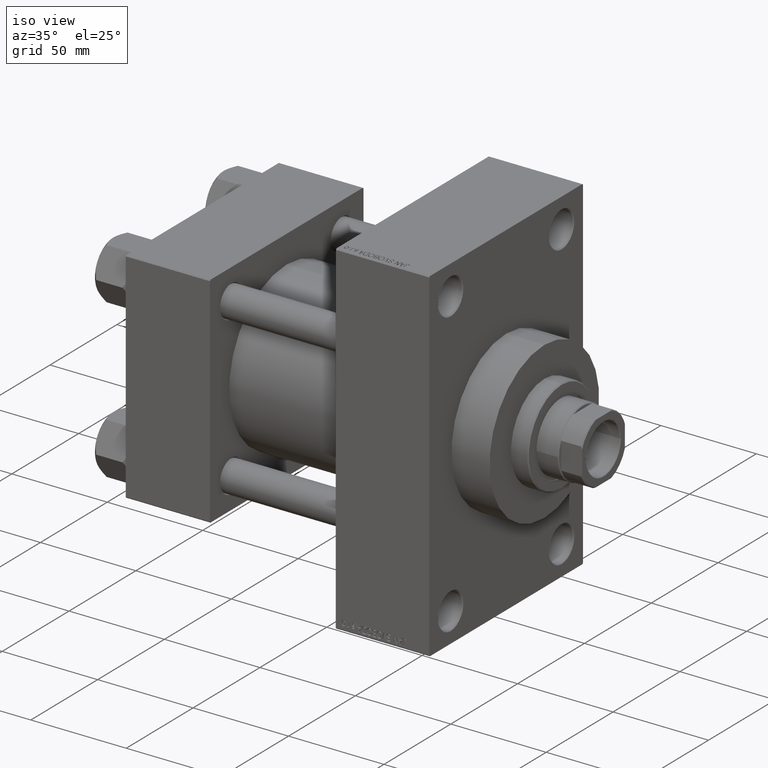
[diagram: clean part render]
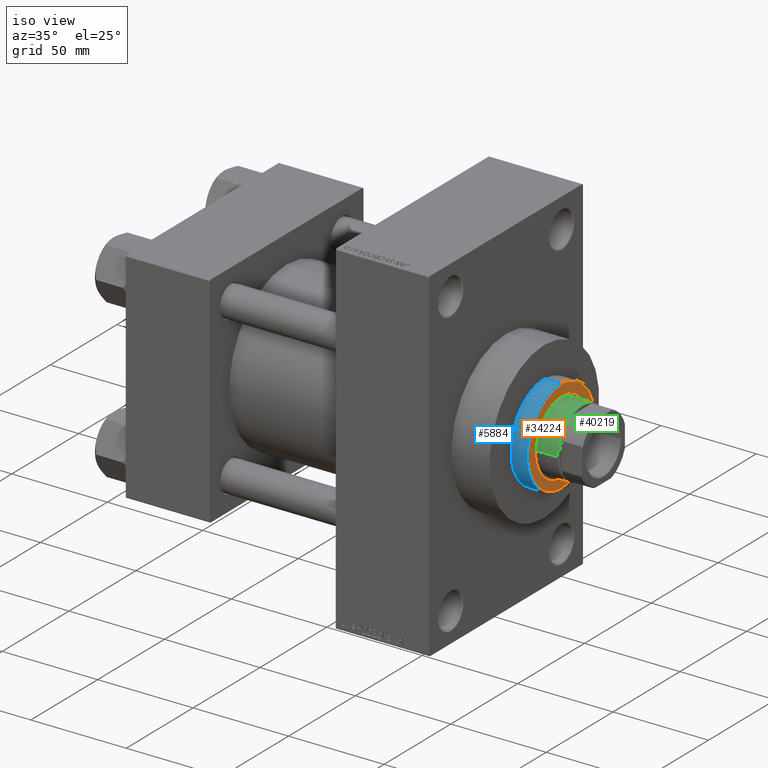
[diagram: same view with three faces highlighted in distinct colors, each labeled with its STEP entity id]
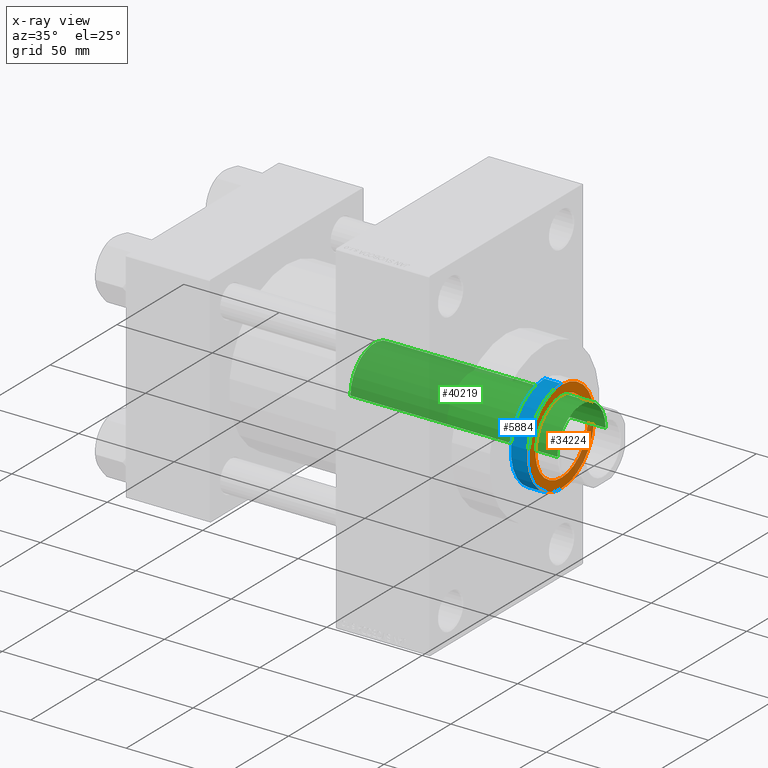
[diagram: x-ray of the same camera — body ghosted, the three highlighted faces saturated]
A machine part, iso view with three faces highlighted in distinct colors.
The next image is the same camera in x-ray (body ghosted, the three faces saturated) — at least one of them is partly hidden behind the body in this view.
Their STEP definitions:

[orange] entity #34224 — the highlighted planar face has unit normal (1, -0, -0).
#1458 = DIRECTION ( 'NONE',  ( 1.000000000000000000, 0.000000000000000000, 0.000000000000000000 ) ) ;
#2609 = DIRECTION ( 'NONE',  ( 1.000000000000000000, 0.000000000000000000, -0.000000000000000000 ) ) ;
#3097 = EDGE_CURVE ( 'NONE', #33470, #22095, #37294, .T. ) ;
#4972 = CARTESIAN_POINT ( 'NONE',  ( 0.000000000000000000, 0.000000000000000000, 52.25999999999999801 ) ) ;
#5754 = CARTESIAN_POINT ( 'NONE',  ( 0.000000000000000000, 0.000000000000000000, 52.25999999999999801 ) ) ;
#8918 = DIRECTION ( 'NONE',  ( 0.000000000000000000, 0.000000000000000000, 1.000000000000000000 ) ) ;
#9544 = AXIS2_PLACEMENT_3D ( 'NONE', #4972, #34376, #16053 ) ;
#9656 = AXIS2_PLACEMENT_3D ( 'NONE', #11229, #22307, #25931 ) ;
#9711 = EDGE_CURVE ( 'NONE', #22095, #33470, #21206, .T. ) ;
#10077 = EDGE_CURVE ( 'NONE', #33255, #11522, #35097, .T. ) ;
#10338 = AXIS2_PLACEMENT_3D ( 'NONE', #12262, #26726, #44809 ) ;
#11229 = CARTESIAN_POINT ( 'NONE',  ( 0.000000000000000000, 0.000000000000000000, 52.25999999999999801 ) ) ;
#11522 = VERTEX_POINT ( 'NONE', #19305 ) ;
#11544 = ORIENTED_EDGE ( 'NONE', *, *, #36879, .F. ) ;
#12262 = CARTESIAN_POINT ( 'NONE',  ( 0.000000000000000000, 0.000000000000000000, 52.25999999999999801 ) ) ;
#13921 = FACE_OUTER_BOUND ( 'NONE', #32382, .T. ) ;
#14944 = CIRCLE ( 'NONE', #9544, 19.50000000000000000 ) ;
#16053 = DIRECTION ( 'NONE',  ( 1.000000000000000000, 0.000000000000000000, 0.000000000000000000 ) ) ;
#16727 = ORIENTED_EDGE ( 'NONE', *, *, #9711, .T. ) ;
#17188 = ORIENTED_EDGE ( 'NONE', *, *, #3097, .T. ) ;
#17544 = FACE_BOUND ( 'NONE', #33004, .T. ) ;
#19305 = CARTESIAN_POINT ( 'NONE',  ( -19.50000000000000000, 2.388061258337338939E-15, 52.25999999999999801 ) ) ;
#21206 = CIRCLE ( 'NONE', #9656, 24.49999999999998224 ) ;
#22095 = VERTEX_POINT ( 'NONE', #27039 ) ;
#22307 = DIRECTION ( 'NONE',  ( 0.000000000000000000, 0.000000000000000000, 1.000000000000000000 ) ) ;
#24749 = ORIENTED_EDGE ( 'NONE', *, *, #10077, .F. ) ;
#25931 = DIRECTION ( 'NONE',  ( 1.000000000000000000, 0.000000000000000000, 0.000000000000000000 ) ) ;
#26726 = DIRECTION ( 'NONE',  ( 0.000000000000000000, 0.000000000000000000, 1.000000000000000000 ) ) ;
#27039 = CARTESIAN_POINT ( 'NONE',  ( 24.49999999999998224, 3.031000827889698072E-15, 52.25999999999999801 ) ) ;
#29516 = CARTESIAN_POINT ( 'NONE',  ( -24.49999999999998224, 0.000000000000000000, 52.25999999999999801 ) ) ;
#29576 = CARTESIAN_POINT ( 'NONE',  ( 19.50000000000000000, 0.000000000000000000, 52.25999999999999801 ) ) ;
#31553 = PLANE ( 'NONE',  #47350 ) ;
#32382 = EDGE_LOOP ( 'NONE', ( #17188, #16727 ) ) ;
#33004 = EDGE_LOOP ( 'NONE', ( #24749, #11544 ) ) ;
#33255 = VERTEX_POINT ( 'NONE', #29576 ) ;
#33470 = VERTEX_POINT ( 'NONE', #29516 ) ;
#34224 = ADVANCED_FACE ( 'NONE', ( #17544, #13921 ), #31553, .T. ) ;
#34376 = DIRECTION ( 'NONE',  ( 0.000000000000000000, 0.000000000000000000, 1.000000000000000000 ) ) ;
#35097 = CIRCLE ( 'NONE', #38149, 19.50000000000000000 ) ;
#36879 = EDGE_CURVE ( 'NONE', #11522, #33255, #14944, .T. ) ;
#37294 = CIRCLE ( 'NONE', #10338, 24.49999999999998224 ) ;
#38149 = AXIS2_PLACEMENT_3D ( 'NONE', #41950, #8918, #1458 ) ;
#39252 = DIRECTION ( 'NONE',  ( 0.000000000000000000, 0.000000000000000000, 1.000000000000000000 ) ) ;
#41950 = CARTESIAN_POINT ( 'NONE',  ( 0.000000000000000000, 0.000000000000000000, 52.25999999999999801 ) ) ;
#44809 = DIRECTION ( 'NONE',  ( 1.000000000000000000, 0.000000000000000000, 0.000000000000000000 ) ) ;
#47350 = AXIS2_PLACEMENT_3D ( 'NONE', #5754, #39252, #2609 ) ;

[blue] entity #5884 — the highlighted cylindrical surface (partial cylindrical patch) has radius 25 mm, axis along (-1, 0, 0).
#17 = ORIENTED_EDGE ( 'NONE', *, *, #24989, .T. ) ;
#140 = DIRECTION ( 'NONE',  ( -0.000000000000000000, -0.000000000000000000, -1.000000000000000000 ) ) ;
#954 = EDGE_CURVE ( 'NONE', #27466, #9060, #32584, .T. ) ;
#989 = CARTESIAN_POINT ( 'NONE',  ( -25.00000000000000000, 0.000000000000000000, 43.25999999999999801 ) ) ;
#1342 = LINE ( 'NONE', #40468, #33744 ) ;
#2580 = CARTESIAN_POINT ( 'NONE',  ( -25.00000000000000000, 0.000000000000000000, 52.25999999999999801 ) ) ;
#2611 = AXIS2_PLACEMENT_3D ( 'NONE', #32460, #140, #22528 ) ;
#3126 = CIRCLE ( 'NONE', #38580, 25.00000000000000000 ) ;
#5884 = ADVANCED_FACE ( 'NONE', ( #21357 ), #36064, .T. ) ;
#6121 = ORIENTED_EDGE ( 'NONE', *, *, #30966, .F. ) ;
#8619 = CARTESIAN_POINT ( 'NONE',  ( -25.00000000000000000, 0.000000000000000000, 51.75999999999996959 ) ) ;
#9060 = VERTEX_POINT ( 'NONE', #41942 ) ;
#9698 = DIRECTION ( 'NONE',  ( 0.000000000000000000, 0.000000000000000000, -1.000000000000000000 ) ) ;
#10758 = DIRECTION ( 'NONE',  ( -0.000000000000000000, -0.000000000000000000, -1.000000000000000000 ) ) ;
#11013 = DIRECTION ( 'NONE',  ( 1.000000000000000000, 0.000000000000000000, 0.000000000000000000 ) ) ;
#13273 = ORIENTED_EDGE ( 'NONE', *, *, #16521, .T. ) ;
#16521 = EDGE_CURVE ( 'NONE', #9060, #43879, #1342, .T. ) ;
#20546 = DIRECTION ( 'NONE',  ( 1.000000000000000000, 0.000000000000000000, 0.000000000000000000 ) ) ;
#20807 = ORIENTED_EDGE ( 'NONE', *, *, #954, .T. ) ;
#21357 = FACE_OUTER_BOUND ( 'NONE', #42559, .T. ) ;
#22099 = CARTESIAN_POINT ( 'NONE',  ( 0.000000000000000000, 0.000000000000000000, 43.25999999999999801 ) ) ;
#22528 = DIRECTION ( 'NONE',  ( -1.000000000000000000, 0.000000000000000000, 0.000000000000000000 ) ) ;
#24989 = EDGE_CURVE ( 'NONE', #43879, #25459, #3126, .T. ) ;
#25459 = VERTEX_POINT ( 'NONE', #989 ) ;
#27466 = VERTEX_POINT ( 'NONE', #8619 ) ;
#28388 = DIRECTION ( 'NONE',  ( 0.000000000000000000, 0.000000000000000000, 1.000000000000000000 ) ) ;
#30966 = EDGE_CURVE ( 'NONE', #27466, #25459, #35593, .T. ) ;
#31815 = VECTOR ( 'NONE', #10758, 1000.000000000000000 ) ;
#32460 = CARTESIAN_POINT ( 'NONE',  ( 0.000000000000000000, 0.000000000000000000, 52.25999999999999801 ) ) ;
#32584 = CIRCLE ( 'NONE', #44890, 25.00000000000000000 ) ;
#33744 = VECTOR ( 'NONE', #44331, 1000.000000000000000 ) ;
#35260 = CARTESIAN_POINT ( 'NONE',  ( 0.000000000000000000, 0.000000000000000000, 51.75999999999996959 ) ) ;
#35593 = LINE ( 'NONE', #2580, #31815 ) ;
#36064 = CYLINDRICAL_SURFACE ( 'NONE', #2611, 25.00000000000000000 ) ;
#37034 = CARTESIAN_POINT ( 'NONE',  ( 25.00000000000000000, 3.061616997868383043E-15, 43.25999999999999801 ) ) ;
#38580 = AXIS2_PLACEMENT_3D ( 'NONE', #22099, #28388, #11013 ) ;
#40468 = CARTESIAN_POINT ( 'NONE',  ( 25.00000000000000000, 3.061616997868383043E-15, 52.25999999999999801 ) ) ;
#41942 = CARTESIAN_POINT ( 'NONE',  ( 25.00000000000000000, 3.061616997868383043E-15, 51.75999999999996959 ) ) ;
#42559 = EDGE_LOOP ( 'NONE', ( #20807, #13273, #17, #6121 ) ) ;
#43879 = VERTEX_POINT ( 'NONE', #37034 ) ;
#44331 = DIRECTION ( 'NONE',  ( -0.000000000000000000, -0.000000000000000000, -1.000000000000000000 ) ) ;
#44890 = AXIS2_PLACEMENT_3D ( 'NONE', #35260, #9698, #20546 ) ;

[green] entity #40219 — the highlighted cylindrical surface (partial cylindrical patch) has radius 18 mm, axis along (-1, 0, 0).
#330 = CYLINDRICAL_SURFACE ( 'NONE', #33542, 18.00000000000000000 ) ;
#1054 = LINE ( 'NONE', #30462, #35938 ) ;
#2015 = DIRECTION ( 'NONE',  ( -0.000000000000000000, -0.000000000000000000, -1.000000000000000000 ) ) ;
#4649 = DIRECTION ( 'NONE',  ( -0.000000000000000000, -0.000000000000000000, -1.000000000000000000 ) ) ;
#5827 = VERTEX_POINT ( 'NONE', #28361 ) ;
#5880 = CARTESIAN_POINT ( 'NONE',  ( 0.000000000000000000, 0.000000000000000000, 154.4999999999999716 ) ) ;
#6074 = ORIENTED_EDGE ( 'NONE', *, *, #7705, .T. ) ;
#6574 = EDGE_CURVE ( 'NONE', #42880, #5827, #24968, .T. ) ;
#7705 = EDGE_CURVE ( 'NONE', #45242, #21342, #43493, .T. ) ;
#12279 = ORIENTED_EDGE ( 'NONE', *, *, #31467, .T. ) ;
#12590 = CARTESIAN_POINT ( 'NONE',  ( -18.00000000000000000, 0.000000000000000000, 155.0000000000000000 ) ) ;
#12833 = LINE ( 'NONE', #12590, #44918 ) ;
#13245 = EDGE_CURVE ( 'NONE', #45242, #5827, #1054, .T. ) ;
#13271 = CARTESIAN_POINT ( 'NONE',  ( -18.00000000000000000, 0.000000000000000000, 154.4999999999999716 ) ) ;
#15480 = DIRECTION ( 'NONE',  ( -1.000000000000000000, 0.000000000000000000, 0.000000000000000000 ) ) ;
#16380 = ORIENTED_EDGE ( 'NONE', *, *, #6574, .T. ) ;
#17515 = DIRECTION ( 'NONE',  ( 0.000000000000000000, 0.000000000000000000, 1.000000000000000000 ) ) ;
#21342 = VERTEX_POINT ( 'NONE', #13271 ) ;
#22260 = FACE_OUTER_BOUND ( 'NONE', #46679, .T. ) ;
#23484 = CARTESIAN_POINT ( 'NONE',  ( -18.00000000000000000, 0.000000000000000000, 46.00000000000000000 ) ) ;
#24968 = CIRCLE ( 'NONE', #32655, 18.00000000000000000 ) ;
#25886 = CARTESIAN_POINT ( 'NONE',  ( 0.000000000000000000, 0.000000000000000000, 155.0000000000000000 ) ) ;
#26578 = DIRECTION ( 'NONE',  ( -0.000000000000000000, -0.000000000000000000, -1.000000000000000000 ) ) ;
#26589 = CARTESIAN_POINT ( 'NONE',  ( 18.00000000000000000, 2.204364238465235428E-15, 154.4999999999999716 ) ) ;
#27092 = DIRECTION ( 'NONE',  ( 0.000000000000000000, 0.000000000000000000, -1.000000000000000000 ) ) ;
#28075 = AXIS2_PLACEMENT_3D ( 'NONE', #5880, #27092, #45427 ) ;
#28361 = CARTESIAN_POINT ( 'NONE',  ( 18.00000000000000000, 2.204364238465235428E-15, 46.00000000000000000 ) ) ;
#30462 = CARTESIAN_POINT ( 'NONE',  ( 18.00000000000000000, 2.204364238465235428E-15, 155.0000000000000000 ) ) ;
#31467 = EDGE_CURVE ( 'NONE', #21342, #42880, #12833, .T. ) ;
#32655 = AXIS2_PLACEMENT_3D ( 'NONE', #43797, #17515, #36547 ) ;
#33542 = AXIS2_PLACEMENT_3D ( 'NONE', #25886, #26578, #15480 ) ;
#35938 = VECTOR ( 'NONE', #2015, 1000.000000000000000 ) ;
#36547 = DIRECTION ( 'NONE',  ( 1.000000000000000000, 0.000000000000000000, 0.000000000000000000 ) ) ;
#39095 = ORIENTED_EDGE ( 'NONE', *, *, #13245, .F. ) ;
#40219 = ADVANCED_FACE ( 'NONE', ( #22260 ), #330, .T. ) ;
#42880 = VERTEX_POINT ( 'NONE', #23484 ) ;
#43493 = CIRCLE ( 'NONE', #28075, 18.00000000000000000 ) ;
#43797 = CARTESIAN_POINT ( 'NONE',  ( 0.000000000000000000, 0.000000000000000000, 46.00000000000000000 ) ) ;
#44918 = VECTOR ( 'NONE', #4649, 1000.000000000000000 ) ;
#45242 = VERTEX_POINT ( 'NONE', #26589 ) ;
#45427 = DIRECTION ( 'NONE',  ( 1.000000000000000000, 0.000000000000000000, 0.000000000000000000 ) ) ;
#46679 = EDGE_LOOP ( 'NONE', ( #39095, #6074, #12279, #16380 ) ) ;